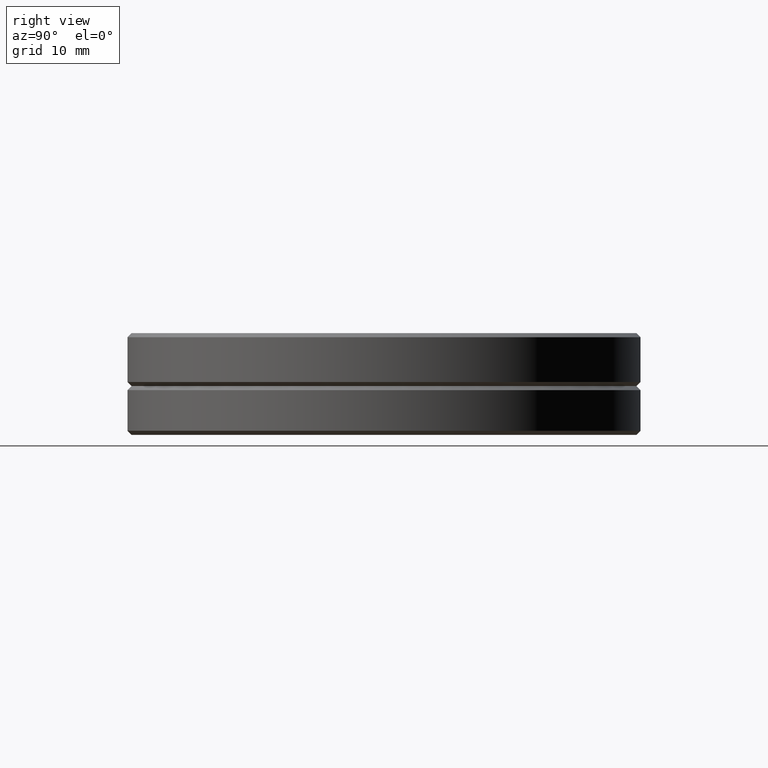
[diagram: clean part render]
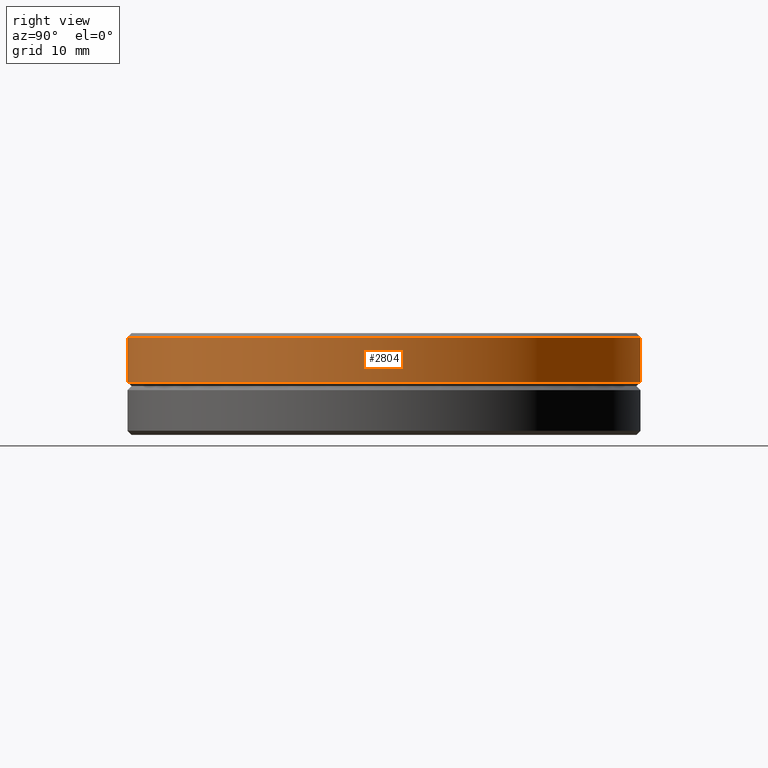
[diagram: same view with one face highlighted and labeled with its STEP entity id]
A machine part, right view. The second image highlights one B-rep face of the part: STEP entity #2804.
In plain terms, the highlighted cylindrical surface (partial cylindrical patch) has radius 31.5 mm, axis along (-0, -0, -1).
Its self-contained STEP definition (entity closure, byte-faithful):
#299 = CARTESIAN_POINT ( 'NONE',  ( 3.330669073875503641E-16, 4.873740551143744794E-41, 6.000000000000061284 ) ) ;
#701 = VERTEX_POINT ( 'NONE', #3267 ) ;
#810 = CARTESIAN_POINT ( 'NONE',  ( 3.608224830031758756E-16, 31.50000000000000000, 6.500000000000000000 ) ) ;
#819 = DIRECTION ( 'NONE',  ( 0.0000000000000000000, -1.000000000000000000, 0.0000000000000000000 ) ) ;
#904 = ORIENTED_EDGE ( 'NONE', *, *, #2614, .T. ) ;
#911 = FACE_OUTER_BOUND ( 'NONE', #1586, .T. ) ;
#1386 = CARTESIAN_POINT ( 'NONE',  ( 4.218459900317337776E-15, -31.50000000000000000, 6.500000000000000000 ) ) ;
#1429 = CARTESIAN_POINT ( 'NONE',  ( 2.775557561563163755E-17, 4.061450459286809573E-42, 0.5000000000000490719 ) ) ;
#1450 = DIRECTION ( 'NONE',  ( 0.0000000000000000000, 1.000000000000000000, 0.0000000000000000000 ) ) ;
#1538 = VERTEX_POINT ( 'NONE', #4562 ) ;
#1576 = EDGE_CURVE ( 'NONE', #5919, #701, #3985, .T. ) ;
#1586 = EDGE_LOOP ( 'NONE', ( #904, #5156, #4012, #3218 ) ) ;
#1760 = DIRECTION ( 'NONE',  ( -5.551115123125782702E-17, -8.122900918572822600E-42, -1.000000000000000000 ) ) ;
#1934 = CYLINDRICAL_SURFACE ( 'NONE', #6455, 31.50000000000000000 ) ;
#2027 = CIRCLE ( 'NONE', #6438, 31.50000000000000000 ) ;
#2446 = EDGE_CURVE ( 'NONE', #701, #4755, #2776, .T. ) ;
#2487 = VECTOR ( 'NONE', #1760, 1000.000000000000000 ) ;
#2614 = EDGE_CURVE ( 'NONE', #1538, #5919, #2027, .T. ) ;
#2776 = CIRCLE ( 'NONE', #4505, 31.50000000000000000 ) ;
#2804 = ADVANCED_FACE ( 'NONE', ( #911 ), #1934, .T. ) ;
#2989 = DIRECTION ( 'NONE',  ( 0.0000000000000000000, -1.000000000000000000, 0.0000000000000000000 ) ) ;
#3218 = ORIENTED_EDGE ( 'NONE', *, *, #4299, .F. ) ;
#3267 = CARTESIAN_POINT ( 'NONE',  ( 4.038048658815752993E-15, -31.50000000000000000, 0.5000000000000490719 ) ) ;
#3344 = CARTESIAN_POINT ( 'NONE',  ( 4.038048658815752993E-15, -31.50000000000000000, 6.000000000000061284 ) ) ;
#3480 = DIRECTION ( 'NONE',  ( -5.551115123125782702E-17, -8.122900918572822600E-42, -1.000000000000000000 ) ) ;
#3509 = DIRECTION ( 'NONE',  ( -5.551115123125782702E-17, -8.122900918572822600E-42, -1.000000000000000000 ) ) ;
#3851 = LINE ( 'NONE', #810, #2487 ) ;
#3985 = LINE ( 'NONE', #1386, #4696 ) ;
#4012 = ORIENTED_EDGE ( 'NONE', *, *, #2446, .T. ) ;
#4299 = EDGE_CURVE ( 'NONE', #1538, #4755, #3851, .T. ) ;
#4505 = AXIS2_PLACEMENT_3D ( 'NONE', #1429, #6185, #2989 ) ;
#4562 = CARTESIAN_POINT ( 'NONE',  ( 1.804112415015910686E-16, 31.50000000000000000, 6.000000000000061284 ) ) ;
#4696 = VECTOR ( 'NONE', #3509, 1000.000000000000000 ) ;
#4755 = VERTEX_POINT ( 'NONE', #6574 ) ;
#5156 = ORIENTED_EDGE ( 'NONE', *, *, #1576, .T. ) ;
#5919 = VERTEX_POINT ( 'NONE', #3344 ) ;
#6080 = CARTESIAN_POINT ( 'NONE',  ( 3.608224830031758756E-16, 5.279885597072334881E-41, 6.500000000000000000 ) ) ;
#6185 = DIRECTION ( 'NONE',  ( 5.551115123125782702E-17, 8.122900918572823875E-42, 1.000000000000000000 ) ) ;
#6423 = DIRECTION ( 'NONE',  ( -5.551115123125782702E-17, -8.122900918572823875E-42, -1.000000000000000000 ) ) ;
#6438 = AXIS2_PLACEMENT_3D ( 'NONE', #299, #6423, #819 ) ;
#6455 = AXIS2_PLACEMENT_3D ( 'NONE', #6080, #3480, #1450 ) ;
#6574 = CARTESIAN_POINT ( 'NONE',  ( 1.804112415015910193E-16, 31.50000000000000000, 0.5000000000000490719 ) ) ;